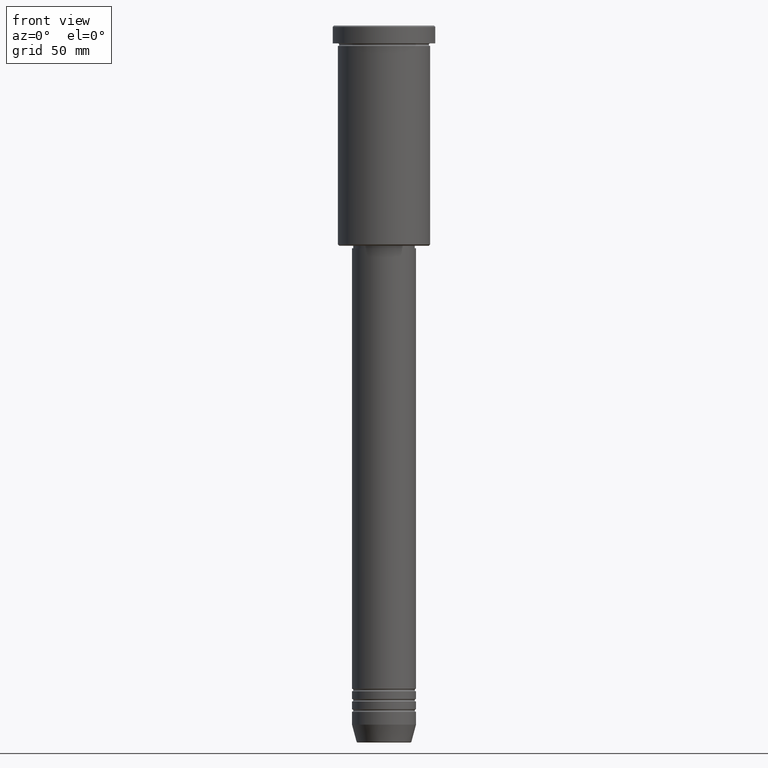
[diagram: clean part render]
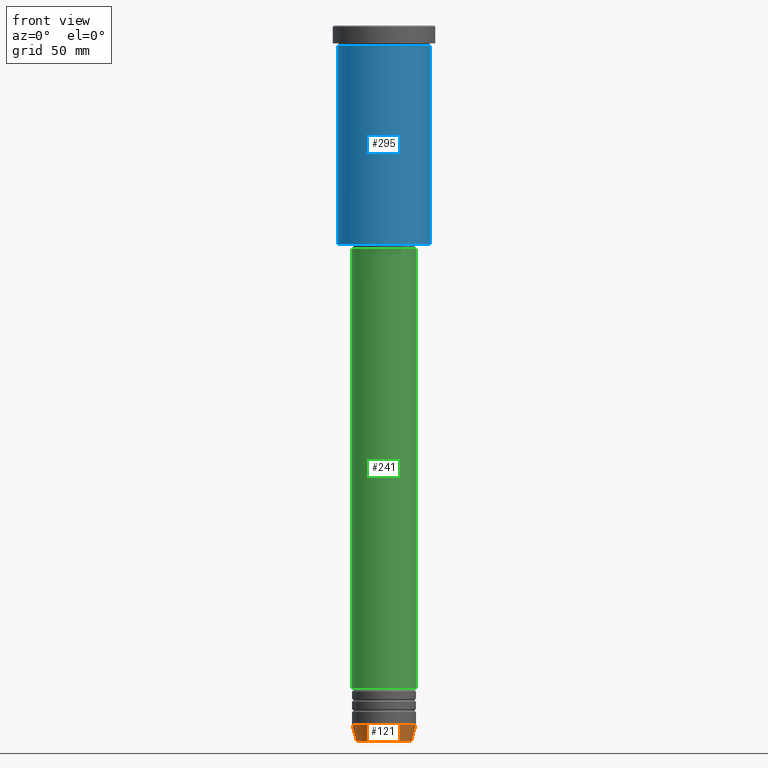
[diagram: same view with three faces highlighted in distinct colors, each labeled with its STEP entity id]
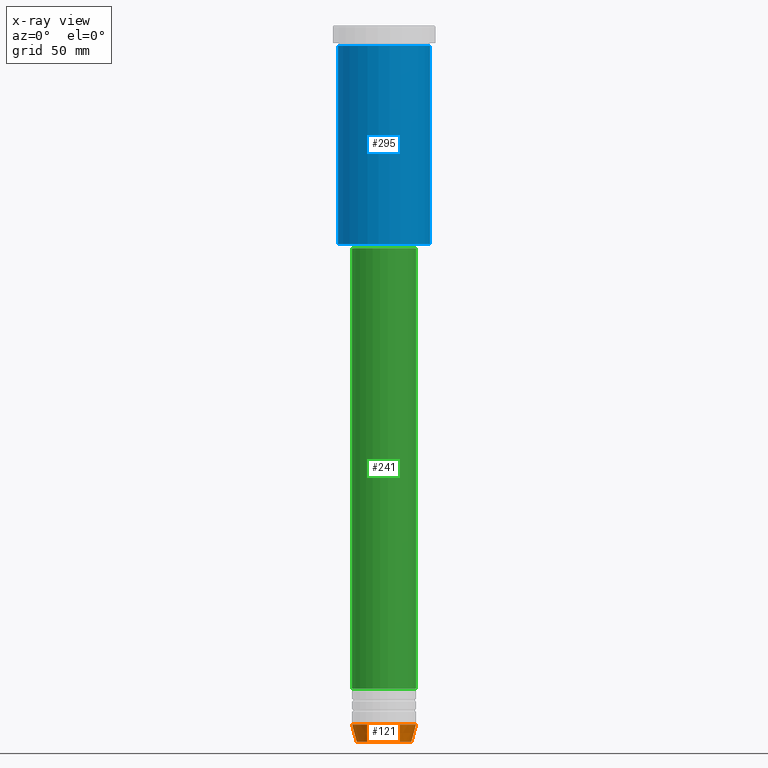
[diagram: x-ray of the same camera — body ghosted, the three highlighted faces saturated]
A machine part, front view with three faces highlighted in distinct colors.
The next image is the same camera in x-ray (body ghosted, the three faces saturated) — at least one of them is partly hidden behind the body in this view.
Their STEP definitions:

[orange] entity #121 — the highlighted conical surface has half-angle 15 deg.
#21 = CARTESIAN_POINT ( 'NONE',  ( 0.000000000000000000, 0.000000000000000000, -273.0000000000000000 ) ) ;
#91 = ORIENTED_EDGE ( 'NONE', *, *, #751, .T. ) ;
#104 = DIRECTION ( 'NONE',  ( -0.2588190451025213501, 3.169619151431772337E-17, 0.9659258262890680902 ) ) ;
#121 = ADVANCED_FACE ( 'NONE', ( #259 ), #394, .T. ) ;
#122 = LINE ( 'NONE', #929, #478 ) ;
#127 = VERTEX_POINT ( 'NONE', #904 ) ;
#134 = CARTESIAN_POINT ( 'NONE',  ( -10.72365507213719127, 1.422038742429750516E-15, -279.6294095225512706 ) ) ;
#202 = VECTOR ( 'NONE', #837, 1000.000000000000000 ) ;
#259 = FACE_OUTER_BOUND ( 'NONE', #762, .T. ) ;
#260 = AXIS2_PLACEMENT_3D ( 'NONE', #713, #617, #995 ) ;
#275 = LINE ( 'NONE', #915, #202 ) ;
#283 = DIRECTION ( 'NONE',  ( -0.000000000000000000, -0.000000000000000000, 1.000000000000000000 ) ) ;
#287 = EDGE_CURVE ( 'NONE', #127, #625, #935, .T. ) ;
#315 = CARTESIAN_POINT ( 'NONE',  ( 12.50000000000000000, 0.000000000000000000, -273.0000000000000000 ) ) ;
#327 = AXIS2_PLACEMENT_3D ( 'NONE', #1106, #283, #1017 ) ;
#341 = CIRCLE ( 'NONE', #327, 10.72365507213719127 ) ;
#389 = DIRECTION ( 'NONE',  ( -0.000000000000000000, -0.000000000000000000, 1.000000000000000000 ) ) ;
#394 = CONICAL_SURFACE ( 'NONE', #260, 12.50000000000000000, 0.2617993877991500740 ) ;
#478 = VECTOR ( 'NONE', #104, 1000.000000000000000 ) ;
#576 = EDGE_CURVE ( 'NONE', #630, #127, #122, .T. ) ;
#600 = VERTEX_POINT ( 'NONE', #923 ) ;
#617 = DIRECTION ( 'NONE',  ( -0.000000000000000000, -0.000000000000000000, 1.000000000000000000 ) ) ;
#625 = VERTEX_POINT ( 'NONE', #315 ) ;
#630 = VERTEX_POINT ( 'NONE', #134 ) ;
#713 = CARTESIAN_POINT ( 'NONE',  ( 0.000000000000000000, 0.000000000000000000, -273.0000000000000000 ) ) ;
#751 = EDGE_CURVE ( 'NONE', #600, #625, #275, .T. ) ;
#762 = EDGE_LOOP ( 'NONE', ( #1179, #1169, #91, #1122 ) ) ;
#837 = DIRECTION ( 'NONE',  ( 0.2588190451025213501, 0.000000000000000000, 0.9659258262890680902 ) ) ;
#904 = CARTESIAN_POINT ( 'NONE',  ( -12.50000000000000000, 1.530808498934191521E-15, -273.0000000000000000 ) ) ;
#915 = CARTESIAN_POINT ( 'NONE',  ( 12.50000000000000000, 0.000000000000000000, -273.0000000000000000 ) ) ;
#923 = CARTESIAN_POINT ( 'NONE',  ( 10.72365507213719127, 0.000000000000000000, -279.6294095225512706 ) ) ;
#929 = CARTESIAN_POINT ( 'NONE',  ( -12.50000000000000000, 1.530808498934191521E-15, -273.0000000000000000 ) ) ;
#935 = CIRCLE ( 'NONE', #996, 12.50000000000000000 ) ;
#995 = DIRECTION ( 'NONE',  ( 1.000000000000000000, 0.000000000000000000, 0.000000000000000000 ) ) ;
#996 = AXIS2_PLACEMENT_3D ( 'NONE', #21, #389, #1119 ) ;
#1015 = EDGE_CURVE ( 'NONE', #630, #600, #341, .T. ) ;
#1017 = DIRECTION ( 'NONE',  ( 1.000000000000000000, 0.000000000000000000, 0.000000000000000000 ) ) ;
#1106 = CARTESIAN_POINT ( 'NONE',  ( 0.000000000000000000, 0.000000000000000000, -279.6294095225512706 ) ) ;
#1119 = DIRECTION ( 'NONE',  ( 1.000000000000000000, 0.000000000000000000, 0.000000000000000000 ) ) ;
#1122 = ORIENTED_EDGE ( 'NONE', *, *, #287, .F. ) ;
#1169 = ORIENTED_EDGE ( 'NONE', *, *, #1015, .T. ) ;
#1179 = ORIENTED_EDGE ( 'NONE', *, *, #576, .F. ) ;

[blue] entity #295 — the highlighted cylindrical surface (partial cylindrical patch) has radius 18 mm, axis along (-0, -0, 1).
#37 = DIRECTION ( 'NONE',  ( -0.000000000000000000, -0.000000000000000000, 1.000000000000000000 ) ) ;
#44 = DIRECTION ( 'NONE',  ( 1.000000000000000000, 0.000000000000000000, 0.000000000000000000 ) ) ;
#136 = VERTEX_POINT ( 'NONE', #452 ) ;
#193 = CARTESIAN_POINT ( 'NONE',  ( -18.00000000000000000, 2.204364238465235428E-15, 0.000000000000000000 ) ) ;
#217 = DIRECTION ( 'NONE',  ( -0.000000000000000000, -0.000000000000000000, 1.000000000000000000 ) ) ;
#271 = EDGE_CURVE ( 'NONE', #136, #822, #1021, .T. ) ;
#274 = EDGE_CURVE ( 'NONE', #136, #1141, #763, .T. ) ;
#295 = ADVANCED_FACE ( 'NONE', ( #410 ), #780, .T. ) ;
#317 = EDGE_LOOP ( 'NONE', ( #848, #660, #989, #994 ) ) ;
#338 = AXIS2_PLACEMENT_3D ( 'NONE', #752, #484, #1023 ) ;
#403 = CARTESIAN_POINT ( 'NONE',  ( -18.00000000000000000, 2.204364238465235428E-15, -7.999999999999996447 ) ) ;
#406 = DIRECTION ( 'NONE',  ( 1.000000000000000000, 0.000000000000000000, 0.000000000000000000 ) ) ;
#410 = FACE_OUTER_BOUND ( 'NONE', #317, .T. ) ;
#430 = EDGE_CURVE ( 'NONE', #822, #1040, #977, .T. ) ;
#452 = CARTESIAN_POINT ( 'NONE',  ( -18.00000000000000000, 2.204364238465235428E-15, -85.49999999999990052 ) ) ;
#484 = DIRECTION ( 'NONE',  ( -0.000000000000000000, -0.000000000000000000, 1.000000000000000000 ) ) ;
#525 = CARTESIAN_POINT ( 'NONE',  ( 0.000000000000000000, 0.000000000000000000, -7.999999999999996447 ) ) ;
#532 = AXIS2_PLACEMENT_3D ( 'NONE', #881, #217, #44 ) ;
#590 = VECTOR ( 'NONE', #677, 1000.000000000000000 ) ;
#627 = EDGE_CURVE ( 'NONE', #1141, #1040, #1042, .T. ) ;
#660 = ORIENTED_EDGE ( 'NONE', *, *, #274, .T. ) ;
#663 = CARTESIAN_POINT ( 'NONE',  ( 18.00000000000000000, 0.000000000000000000, -7.999999999999996447 ) ) ;
#677 = DIRECTION ( 'NONE',  ( -0.000000000000000000, -0.000000000000000000, 1.000000000000000000 ) ) ;
#752 = CARTESIAN_POINT ( 'NONE',  ( 0.000000000000000000, 0.000000000000000000, -85.49999999999990052 ) ) ;
#763 = CIRCLE ( 'NONE', #338, 18.00000000000000000 ) ;
#780 = CYLINDRICAL_SURFACE ( 'NONE', #532, 18.00000000000000000 ) ;
#821 = CARTESIAN_POINT ( 'NONE',  ( 18.00000000000000000, 0.000000000000000000, -85.49999999999990052 ) ) ;
#822 = VERTEX_POINT ( 'NONE', #403 ) ;
#848 = ORIENTED_EDGE ( 'NONE', *, *, #271, .F. ) ;
#860 = VECTOR ( 'NONE', #931, 1000.000000000000000 ) ;
#881 = CARTESIAN_POINT ( 'NONE',  ( 0.000000000000000000, 0.000000000000000000, 0.000000000000000000 ) ) ;
#931 = DIRECTION ( 'NONE',  ( -0.000000000000000000, -0.000000000000000000, 1.000000000000000000 ) ) ;
#957 = CARTESIAN_POINT ( 'NONE',  ( 18.00000000000000000, 0.000000000000000000, 0.000000000000000000 ) ) ;
#977 = CIRCLE ( 'NONE', #1124, 18.00000000000000000 ) ;
#989 = ORIENTED_EDGE ( 'NONE', *, *, #627, .T. ) ;
#994 = ORIENTED_EDGE ( 'NONE', *, *, #430, .F. ) ;
#1021 = LINE ( 'NONE', #193, #860 ) ;
#1023 = DIRECTION ( 'NONE',  ( -1.000000000000000000, 0.000000000000000000, 0.000000000000000000 ) ) ;
#1040 = VERTEX_POINT ( 'NONE', #663 ) ;
#1042 = LINE ( 'NONE', #957, #590 ) ;
#1124 = AXIS2_PLACEMENT_3D ( 'NONE', #525, #37, #406 ) ;
#1141 = VERTEX_POINT ( 'NONE', #821 ) ;

[green] entity #241 — the highlighted cylindrical surface (edge-blend (fillet) strip) has radius 12.5 mm, axis along (-0, -0, 1).
#46 = VERTEX_POINT ( 'NONE', #234 ) ;
#151 = AXIS2_PLACEMENT_3D ( 'NONE', #703, #864, #1154 ) ;
#153 = EDGE_LOOP ( 'NONE', ( #870, #676, #856, #409 ) ) ;
#156 = DIRECTION ( 'NONE',  ( 1.000000000000000000, 0.000000000000000000, 0.000000000000000000 ) ) ;
#186 = LINE ( 'NONE', #633, #1090 ) ;
#234 = CARTESIAN_POINT ( 'NONE',  ( 12.50000000000000000, 0.000000000000000000, -87.00000000000002842 ) ) ;
#241 = ADVANCED_FACE ( 'NONE', ( #573 ), #757, .T. ) ;
#321 = VERTEX_POINT ( 'NONE', #1071 ) ;
#353 = AXIS2_PLACEMENT_3D ( 'NONE', #649, #494, #1129 ) ;
#388 = LINE ( 'NONE', #1036, #997 ) ;
#409 = ORIENTED_EDGE ( 'NONE', *, *, #1041, .F. ) ;
#423 = EDGE_CURVE ( 'NONE', #829, #321, #1161, .T. ) ;
#494 = DIRECTION ( 'NONE',  ( -0.000000000000000000, -0.000000000000000000, 1.000000000000000000 ) ) ;
#537 = EDGE_CURVE ( 'NONE', #829, #941, #388, .T. ) ;
#558 = DIRECTION ( 'NONE',  ( -0.000000000000000000, -0.000000000000000000, 1.000000000000000000 ) ) ;
#573 = FACE_OUTER_BOUND ( 'NONE', #153, .T. ) ;
#633 = CARTESIAN_POINT ( 'NONE',  ( 12.50000000000000000, 0.000000000000000000, 0.000000000000000000 ) ) ;
#643 = DIRECTION ( 'NONE',  ( -0.000000000000000000, -0.000000000000000000, 1.000000000000000000 ) ) ;
#649 = CARTESIAN_POINT ( 'NONE',  ( 0.000000000000000000, 0.000000000000000000, 0.000000000000000000 ) ) ;
#676 = ORIENTED_EDGE ( 'NONE', *, *, #423, .T. ) ;
#703 = CARTESIAN_POINT ( 'NONE',  ( 0.000000000000000000, 0.000000000000000000, -87.00000000000002842 ) ) ;
#757 = CYLINDRICAL_SURFACE ( 'NONE', #353, 12.50000000000000000 ) ;
#773 = CARTESIAN_POINT ( 'NONE',  ( -12.50000000000000000, 1.530808498934191521E-15, -259.0000000000000000 ) ) ;
#777 = EDGE_CURVE ( 'NONE', #321, #46, #186, .T. ) ;
#796 = CARTESIAN_POINT ( 'NONE',  ( 0.000000000000000000, 0.000000000000000000, -259.0000000000000000 ) ) ;
#829 = VERTEX_POINT ( 'NONE', #773 ) ;
#856 = ORIENTED_EDGE ( 'NONE', *, *, #777, .T. ) ;
#864 = DIRECTION ( 'NONE',  ( -0.000000000000000000, -0.000000000000000000, 1.000000000000000000 ) ) ;
#870 = ORIENTED_EDGE ( 'NONE', *, *, #537, .F. ) ;
#941 = VERTEX_POINT ( 'NONE', #1004 ) ;
#997 = VECTOR ( 'NONE', #558, 1000.000000000000000 ) ;
#998 = CIRCLE ( 'NONE', #151, 12.50000000000000000 ) ;
#1004 = CARTESIAN_POINT ( 'NONE',  ( -12.50000000000000000, 1.530808498934191521E-15, -87.00000000000002842 ) ) ;
#1025 = AXIS2_PLACEMENT_3D ( 'NONE', #796, #1156, #156 ) ;
#1036 = CARTESIAN_POINT ( 'NONE',  ( -12.50000000000000000, 1.530808498934191521E-15, 0.000000000000000000 ) ) ;
#1041 = EDGE_CURVE ( 'NONE', #941, #46, #998, .T. ) ;
#1071 = CARTESIAN_POINT ( 'NONE',  ( 12.50000000000000000, 0.000000000000000000, -259.0000000000000000 ) ) ;
#1090 = VECTOR ( 'NONE', #643, 1000.000000000000000 ) ;
#1129 = DIRECTION ( 'NONE',  ( 1.000000000000000000, 0.000000000000000000, 0.000000000000000000 ) ) ;
#1154 = DIRECTION ( 'NONE',  ( 1.000000000000000000, 0.000000000000000000, 0.000000000000000000 ) ) ;
#1156 = DIRECTION ( 'NONE',  ( -0.000000000000000000, -0.000000000000000000, 1.000000000000000000 ) ) ;
#1161 = CIRCLE ( 'NONE', #1025, 12.50000000000000000 ) ;